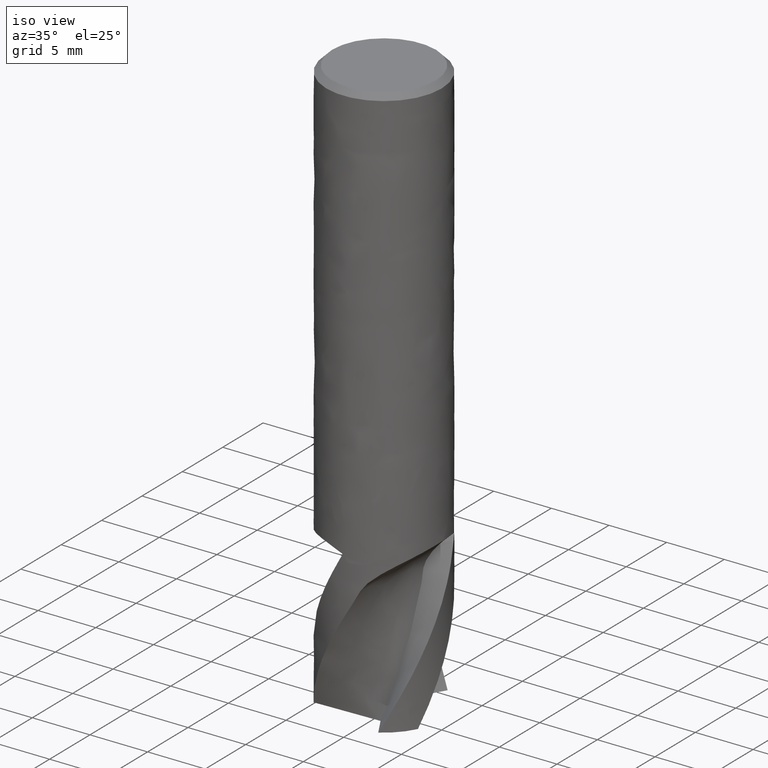
[diagram: clean part render]
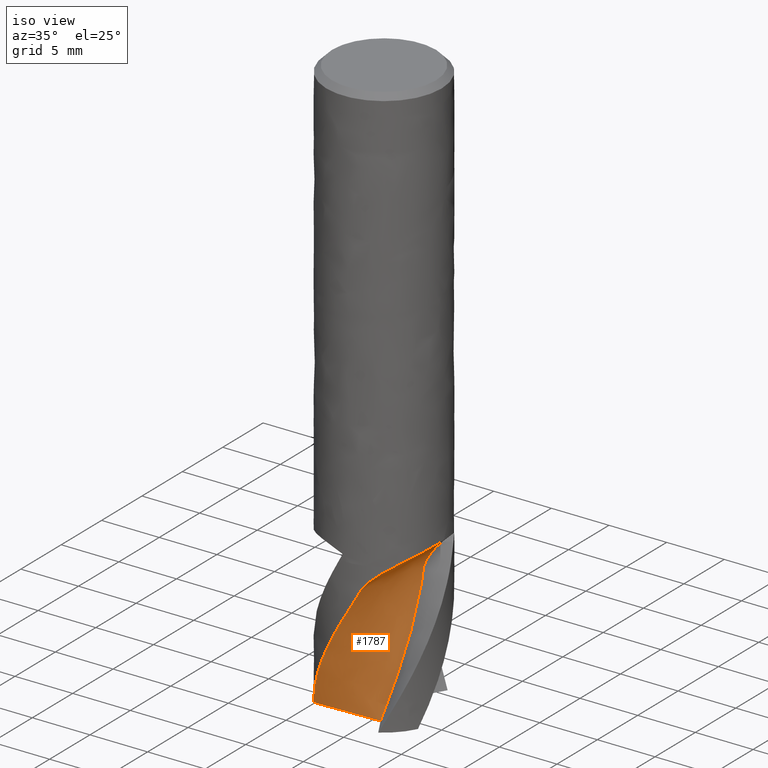
[diagram: same view with one face highlighted and labeled with its STEP entity id]
A machine part, iso view. The second image highlights one B-rep face of the part: STEP entity #1787.
In plain terms, the highlighted face is a freeform B-spline surface patch.
Its self-contained STEP definition (entity closure, byte-faithful):
#979 = VERTEX_POINT('', #980);
#980 = CARTESIAN_POINT('', (3.52731095075702, -3.54373778046141, -37.));
#987 = EDGE_CURVE('', #979, #988, #990, .T.);
#988 = VERTEX_POINT('', #989);
#989 = CARTESIAN_POINT('', (3.82045431044937, 1.82084653301444, -37.));
#990 = LINE('', #991, #992);
#991 = CARTESIAN_POINT('', (3.52731095075703, -3.54373778046141, -37.));
#992 = VECTOR('', #993, 5.37258763406636);
#993 = DIRECTION('', (0.293143359692332, 5.36458431347584, 0.));
#1727 = EDGE_CURVE('', #1728, #988, #1730, .T.);
#1728 = VERTEX_POINT('', #1729);
#1729 = CARTESIAN_POINT('', (1.52973524202982, -2.6149426677213, -50.));
#1730 = B_SPLINE_CURVE_WITH_KNOTS('', 3, (#1731, #1732, #1733, #1734, #1735, #1736, #1737, #1738, #1739, #1740, #1741, #1742, #1743, #1744, #1745, #1746), .UNSPECIFIED., .F., .U., (4, 1, 1, 1, 1, 1, 1, 1, 1, 1, 1, 1, 1, 4), (0.0499999999999139, 1.87333333333333, 2.81, 3.74666666666667, 4.68333333333333, 5.62, 6.55666666666667, 7.49333333333333, 8.43, 9.36666666666667, 10.3033333333333, 11.24, 12.1766666666667, 13.05), .UNSPECIFIED.);
#1731 = CARTESIAN_POINT('', (1.5297352420298, -2.61494266772132, -50.0000000000001));
#1732 = CARTESIAN_POINT('', (1.70853202545369, -2.50367414278105, -49.3922222222223));
#1733 = CARTESIAN_POINT('', (1.9615705231082, -2.30883669785004, -48.4722222222223));
#1734 = CARTESIAN_POINT('', (2.25597846322701, -2.00229892265506, -47.24));
#1735 = CARTESIAN_POINT('', (2.45472630653001, -1.74812208492103, -46.3033333333333));
#1736 = CARTESIAN_POINT('', (2.62656965451419, -1.4752809407662, -45.3666666666667));
#1737 = CARTESIAN_POINT('', (2.76980779281399, -1.18645296262457, -44.43));
#1738 = CARTESIAN_POINT('', (2.88325106920112, -0.884362522824121, -43.4933333333333));
#1739 = CARTESIAN_POINT('', (2.96493973519287, -0.572168038188853, -42.5566666666667));
#1740 = CARTESIAN_POINT('', (3.01697392627312, -0.251934615331243, -41.62));
#1741 = CARTESIAN_POINT('', (3.02752671368613, 0.0697566565968309, -40.6833333333333));
#1742 = CARTESIAN_POINT('', (3.03800817788962, 0.40283498959021, -39.7466666666667));
#1743 = CARTESIAN_POINT('', (2.86114787654536, 0.691249828554066, -38.81));
#1744 = CARTESIAN_POINT('', (3.14595035866943, 1.09796002240504, -37.8944444444444));
#1745 = CARTESIAN_POINT('', (3.57161511705545, 1.54599300256216, -37.2911111111111));
#1746 = CARTESIAN_POINT('', (3.82045431044937, 1.82084653301444, -37.));
#1787 = ADVANCED_FACE('', (#1788), #1948, .T.);
#1788 = FACE_OUTER_BOUND('', #1789, .T.);
#1789 = EDGE_LOOP('', (#1790, #1791, #1941, #1947));
#1790 = ORIENTED_EDGE('', *, *, #987, .F.);
#1791 = ORIENTED_EDGE('', *, *, #1792, .T.);
#1792 = EDGE_CURVE('', #979, #1793, #1795, .T.);
#1793 = VERTEX_POINT('', #1794);
#1794 = CARTESIAN_POINT('', (-4.15237570700581, -2.78527843991727, -50.));
#1795 = B_SPLINE_CURVE_WITH_KNOTS('', 3, (#1796, #1797, #1798, #1799, #1800, #1801, #1802, #1803, #1804, #1805, #1806, #1807, #1808, #1809, #1810, #1811, #1812, #1813, #1814, #1815, #1816, #1817, #1818, #1819, #1820, #1821, #1822, #1823, #1824, #1825, #1826, #1827, #1828, #1829, #1830, #1831, #1832, #1833, #1834, #1835, #1836, #1837, #1838, #1839, #1840, #1841, #1842, #1843, #1844, #1845, #1846, #1847, #1848, #1849, #1850, #1851, #1852, #1853, #1854, #1855, #1856, #1857, #1858, #1859, #1860, #1861, #1862, #1863, #1864, #1865, #1866, #1867, #1868, #1869, #1870, #1871, #1872, #1873, #1874, #1875, #1876, #1877, #1878, #1879, #1880, #1881, #1882, #1883, #1884, #1885, #1886, #1887, #1888, #1889, #1890, #1891, #1892, #1893, #1894, #1895, #1896, #1897, #1898, #1899, #1900, #1901, #1902, #1903, #1904, #1905, #1906, #1907, #1908, #1909, #1910, #1911, #1912, #1913, #1914, #1915, #1916, #1917, #1918, #1919, #1920, #1921, #1922, #1923, #1924, #1925, #1926, #1927, #1928, #1929, #1930, #1931, #1932, #1933, #1934, #1935, #1936, #1937, #1938, #1939, #1940), .UNSPECIFIED., .F., .U., (4, 3, 3, 3, 3, 3, 3, 3, 3, 3, 3, 3, 3, 3, 3, 3, 3, 3, 3, 3, 3, 3, 3, 3, 3, 3, 3, 3, 3, 3, 3, 3, 3, 3, 3, 3, 3, 3, 3, 3, 3, 3, 3, 3, 3, 3, 3, 3, 4), (4.37847124815959, 4.42866788668725, 4.72124892465017, 5.01384954588585, 5.20959122788634, 5.40536847900403, 5.6011939954346, 5.79708109230978, 5.9930435759343, 6.18909628697612, 6.3852693883366, 6.58158512623761, 6.77805996641105, 6.97470642856329, 7.17153040700381, 7.36852788428761, 7.45610649411782, 7.58748366107747, 7.71883004777572, 7.85014773917789, 7.98144380173887, 8.11272916736132, 8.2440174113146, 8.37532380192732, 8.50666464982476, 8.70373445138236, 8.9008071692154, 9.09786418927945, 9.29488926272311, 9.49186798563667, 9.62318009052078, 10.0658573274275, 10.3611574240539, 10.4195336477975, 10.4779199970019, 10.6750745653493, 11.1189992620795, 11.5628587917202, 11.8586185053872, 12.524496604815, 12.968213739976, 13.9673348283944, 14.966081715056, 15.9645169734046, 16.9626347725335, 17.9604507633167, 18.957971355733, 19.955202992374, 20.3201725664195), .UNSPECIFIED.);
#1796 = CARTESIAN_POINT('', (3.52731095075702, -3.54373778046141, -37.));
#1797 = CARTESIAN_POINT('', (3.51658757760726, -3.55441144591961, -37.0071448639305));
#1798 = CARTESIAN_POINT('', (3.50582636083623, -3.56502585765789, -37.0143285236948));
#1799 = CARTESIAN_POINT('', (3.49503218982964, -3.57557687542229, -37.0215485543751));
#1800 = CARTESIAN_POINT('', (3.43211622872762, -3.63707556974966, -37.0636319315199));
#1801 = CARTESIAN_POINT('', (3.36798866215555, -3.69650745938617, -37.1070107370575));
#1802 = CARTESIAN_POINT('', (3.30290631479984, -3.75377275226609, -37.1516928642598));
#1803 = CARTESIAN_POINT('', (3.23781961129935, -3.81104187807332, -37.1963779821627));
#1804 = CARTESIAN_POINT('', (3.17172782630745, -3.86618808751028, -37.2424007260018));
#1805 = CARTESIAN_POINT('', (3.10490592491564, -3.91912735151892, -37.2897827830053));
#1806 = CARTESIAN_POINT('', (3.06020393037556, -3.9545422475542, -37.3214800620314));
#1807 = CARTESIAN_POINT('', (3.01515661945924, -3.98898507676807, -37.3537993025253));
#1808 = CARTESIAN_POINT('', (2.96985191555038, -4.02243453640981, -37.3867510570782));
#1809 = CARTESIAN_POINT('', (2.92453897911635, -4.055890074306, -37.4197087994453));
#1810 = CARTESIAN_POINT('', (2.87895301454366, -4.08836330822844, -37.4533105072234));
#1811 = CARTESIAN_POINT('', (2.83318758932333, -4.11983592922159, -37.4875705128912));
#1812 = CARTESIAN_POINT('', (2.78741088147156, -4.15131630921581, -37.5218389647389));
#1813 = CARTESIAN_POINT('', (2.74143875068203, -4.18180643706447, -37.5567778141449));
#1814 = CARTESIAN_POINT('', (2.69537176452971, -4.2112909007782, -37.5924057145142));
#1815 = CARTESIAN_POINT('', (2.64929029188174, -4.24078463634995, -37.6280448186427));
#1816 = CARTESIAN_POINT('', (2.60309758212529, -4.26928244219477, -37.6643858886091));
#1817 = CARTESIAN_POINT('', (2.55690304362676, -4.29677167481519, -37.7014525178774));
#1818 = CARTESIAN_POINT('', (2.51069072725439, -4.32427148661067, -37.7385334121623));
#1819 = CARTESIAN_POINT('', (2.46445963575687, -4.35077193042953, -37.7763538340911));
#1820 = CARTESIAN_POINT('', (2.41833052854816, -4.37626295538729, -37.8149429992672));
#1821 = CARTESIAN_POINT('', (2.37218018201787, -4.40176571723113, -37.8535499321335));
#1822 = CARTESIAN_POINT('', (2.32611513232719, -4.42626732849094, -37.8929424294686));
#1823 = CARTESIAN_POINT('', (2.2802668413685, -4.44976214332354, -37.9331502459228));
#1824 = CARTESIAN_POINT('', (2.2343903962959, -4.4732713856447, -37.9733827528382));
#1825 = CARTESIAN_POINT('', (2.18871147980169, -4.49578252829075, -38.0144466174042));
#1826 = CARTESIAN_POINT('', (2.1433718431177, -4.5172953348359, -38.0563692103539));
#1827 = CARTESIAN_POINT('', (2.09799924019686, -4.53882378324164, -38.098322285024));
#1828 = CARTESIAN_POINT('', (2.05294648027746, -4.55936178039322, -38.1411535901148));
#1829 = CARTESIAN_POINT('', (2.00837227322583, -4.57891262333512, -38.1848927289589));
#1830 = CARTESIAN_POINT('', (1.96376194142073, -4.5984793110767, -38.2286673157832));
#1831 = CARTESIAN_POINT('', (1.91960938969489, -4.61706655283285, -38.2733721126347));
#1832 = CARTESIAN_POINT('', (1.87609506878996, -4.63468092675882, -38.3190381736861));
#1833 = CARTESIAN_POINT('', (1.83254273785863, -4.65231068694853, -38.3647441243222));
#1834 = CARTESIAN_POINT('', (1.78960603211823, -4.66897531173409, -38.4114375810825));
#1835 = CARTESIAN_POINT('', (1.74749375163451, -4.68468415029213, -38.4591495934175));
#1836 = CARTESIAN_POINT('', (1.7053434556399, -4.70040716950049, -38.5069046762419));
#1837 = CARTESIAN_POINT('', (1.66399244334657, -4.71518241215699, -38.5557098770983));
#1838 = CARTESIAN_POINT('', (1.62368707217189, -4.72902107117973, -38.6055935146154));
#1839 = CARTESIAN_POINT('', (1.5833461721184, -4.74287192887537, -38.6555211241804));
#1840 = CARTESIAN_POINT('', (1.54402225828269, -4.75579480167819, -38.7065662535932));
#1841 = CARTESIAN_POINT('', (1.50601203012692, -4.76780114571832, -38.7587493057389));
#1842 = CARTESIAN_POINT('', (1.4891139307852, -4.77313877204063, -38.7819481772506));
#1843 = CARTESIAN_POINT('', (1.47247261032783, -4.77829643345368, -38.8053790349328));
#1844 = CARTESIAN_POINT('', (1.45611424985407, -4.7832762089777, -38.8290397520368));
#1845 = CARTESIAN_POINT('', (1.43157498096965, -4.79074639835053, -38.8645333273217));
#1846 = CARTESIAN_POINT('', (1.40765974411968, -4.79782043432647, -38.9005523130833));
#1847 = CARTESIAN_POINT('', (1.38438131800678, -4.80452790254748, -38.9370337889432));
#1848 = CARTESIAN_POINT('', (1.36110834577949, -4.81123379928062, -38.9735067175846));
#1849 = CARTESIAN_POINT('', (1.33846342945667, -4.8175759043558, -39.0104559224876));
#1850 = CARTESIAN_POINT('', (1.31642334037947, -4.82359094336428, -39.0478046653066));
#1851 = CARTESIAN_POINT('', (1.29438806640908, -4.82960466826485, -39.0851452485313));
#1852 = CARTESIAN_POINT('', (1.27295055624233, -4.83529349623474, -39.122897083473));
#1853 = CARTESIAN_POINT('', (1.2520442563023, -4.84070089762433, -39.1609723244403));
#1854 = CARTESIAN_POINT('', (1.23114139976001, -4.84610740838127, -39.1990412941784));
#1855 = CARTESIAN_POINT('', (1.2107646011806, -4.85123402897659, -39.2374424310863));
#1856 = CARTESIAN_POINT('', (1.19080069022979, -4.85612949952412, -39.2760802733498));
#1857 = CARTESIAN_POINT('', (1.17083840577656, -4.86102457122841, -39.3147149677153));
#1858 = CARTESIAN_POINT('', (1.15128569004964, -4.86568945826427, -39.3535917815038));
#1859 = CARTESIAN_POINT('', (1.13198493473559, -4.87017557255708, -39.3926103637326));
#1860 = CARTESIAN_POINT('', (1.1126837562673, -4.87466178520449, -39.4316298014139));
#1861 = CARTESIAN_POINT('', (1.09363261306281, -4.87896976770175, -39.4707934632651));
#1862 = CARTESIAN_POINT('', (1.07463756113388, -4.88315001942396, -39.509996672431));
#1863 = CARTESIAN_POINT('', (1.05563988370912, -4.88733084894051, -39.5492053002639));
#1864 = CARTESIAN_POINT('', (1.0366969540179, -4.89138428183844, -39.5884542626605));
#1865 = CARTESIAN_POINT('', (1.01759209050205, -4.89535558844786, -39.6276325792831));
#1866 = CARTESIAN_POINT('', (0.99848221350803, -4.89932793720337, -39.6668211770383));
#1867 = CARTESIAN_POINT('', (0.979208508283451, -4.90321852932095, -39.7059402790398));
#1868 = CARTESIAN_POINT('', (0.959549637408999, -4.90706271544885, -39.7448692422463));
#1869 = CARTESIAN_POINT('', (0.93005257047138, -4.91283070773383, -39.8032800350558));
#1870 = CARTESIAN_POINT('', (0.899676556666448, -4.91849338366037, -39.8612627076616));
#1871 = CARTESIAN_POINT('', (0.868611447225429, -4.92397341115375, -39.9188829791261));
#1872 = CARTESIAN_POINT('', (0.837545878077164, -4.92945351974159, -39.976504103266));
#1873 = CARTESIAN_POINT('', (0.805786579606566, -4.93475173394876, -40.0337717789792));
#1874 = CARTESIAN_POINT('', (0.773519596054754, -4.9398043923337, -40.0907683362393));
#1875 = CARTESIAN_POINT('', (0.741255182719964, -4.94485664825064, -40.1477603534554));
#1876 = CARTESIAN_POINT('', (0.708479937844491, -4.9496638504781, -40.2044867175278));
#1877 = CARTESIAN_POINT('', (0.675378697308106, -4.95417638111749, -40.2610424654783));
#1878 = CARTESIAN_POINT('', (0.642282823100538, -4.95868818019146, -40.3175890446866));
#1879 = CARTESIAN_POINT('', (0.608858903216956, -4.96290564351069, -40.3739681341177));
#1880 = CARTESIAN_POINT('', (0.575295867855748, -4.96679319726804, -40.4302852578345));
#1881 = CARTESIAN_POINT('', (0.541740728263612, -4.97067983647084, -40.4865891328389));
#1882 = CARTESIAN_POINT('', (0.508044905023024, -4.97423682946729, -40.5428329142561));
#1883 = CARTESIAN_POINT('', (0.474408863546249, -4.9774427400211, -40.5991313915813));
#1884 = CARTESIAN_POINT('', (0.451986038679915, -4.97957989908408, -40.6366616966316));
#1885 = CARTESIAN_POINT('', (0.42959312018046, -4.98156108271248, -40.6742192006407));
#1886 = CARTESIAN_POINT('', (0.407282920343078, -4.98338445464494, -40.711833089286));
#1887 = CARTESIAN_POINT('', (0.332071136725988, -4.98953137651191, -40.8386364202472));
#1888 = CARTESIAN_POINT('', (0.257690812354492, -4.99390260131498, -40.9660307745416));
#1889 = CARTESIAN_POINT('', (0.183796577699636, -4.99662073986269, -41.093725471353));
#1890 = CARTESIAN_POINT('', (0.134503384342349, -4.99843394937261, -41.1789077512701));
#1891 = CARTESIAN_POINT('', (0.0854189783202942, -4.99951056114846, -41.2642295577258));
#1892 = CARTESIAN_POINT('', (0.0364074947242855, -4.99986744767578, -41.3495927497917));
#1893 = CARTESIAN_POINT('', (0.0267186887770713, -4.99993799857639, -41.3664677215795));
#1894 = CARTESIAN_POINT('', (0.0170325986243257, -4.99998036803393, -41.3833443940034));
#1895 = CARTESIAN_POINT('', (0.00734807808599483, -4.99999460057193, -41.4002219670022));
#1896 = CARTESIAN_POINT('', (-0.00233812224982093, -5.00000883557858, -41.4171024674463));
#1897 = CARTESIAN_POINT('', (-0.0120227729534397, -4.99999492398435, -41.4339839042468));
#1898 = CARTESIAN_POINT('', (-0.0217070473753938, -4.99995288018739, -41.4508654632999));
#1899 = CARTESIAN_POINT('', (-0.054408166205937, -4.99981090990233, -41.5078698236256));
#1900 = CARTESIAN_POINT('', (-0.0871053145663233, -4.99934847754286, -41.5648765906766));
#1901 = CARTESIAN_POINT('', (-0.119845496988953, -4.99856349933173, -41.6218532937105));
#1902 = CARTESIAN_POINT('', (-0.193565196586551, -4.99679599672076, -41.75014535322));
#1903 = CARTESIAN_POINT('', (-0.267508766355292, -4.99338882639045, -41.8782967940414));
#1904 = CARTESIAN_POINT('', (-0.34144992730949, -4.98832757015218, -42.0063735644156));
#1905 = CARTESIAN_POINT('', (-0.415380233877141, -4.98326705689428, -42.1344315334246));
#1906 = CARTESIAN_POINT('', (-0.489317064017866, -4.97655204400835, -42.2624309526826));
#1907 = CARTESIAN_POINT('', (-0.563016997979124, -4.96820006239549, -42.3904493364701));
#1908 = CARTESIAN_POINT('', (-0.612125938781423, -4.96263483392699, -42.4757526317801));
#1909 = CARTESIAN_POINT('', (-0.6611276673136, -4.9563438490624, -42.5610734506627));
#1910 = CARTESIAN_POINT('', (-0.709964799099017, -4.94933833800441, -42.6464266544642));
#1911 = CARTESIAN_POINT('', (-0.819917490395532, -4.93356601955382, -42.8385922081249));
#1912 = CARTESIAN_POINT('', (-0.929102169025311, -4.91416573903086, -43.030934594018));
#1913 = CARTESIAN_POINT('', (-1.03739883273608, -4.89119654704641, -43.2233149703954));
#1914 = CARTESIAN_POINT('', (-1.10956382120849, -4.87589070642324, -43.3515103105645));
#1915 = CARTESIAN_POINT('', (-1.18135025001986, -4.85899637176505, -43.4797394559019));
#1916 = CARTESIAN_POINT('', (-1.25271580199078, -4.84052715305292, -43.607965605776));
#1917 = CARTESIAN_POINT('', (-1.41341013247884, -4.79893987945075, -43.8966933565749));
#1918 = CARTESIAN_POINT('', (-1.57199164588054, -4.74934592095766, -44.1855610636551));
#1919 = CARTESIAN_POINT('', (-1.72745398816804, -4.69211068909956, -44.4744753617137));
#1920 = CARTESIAN_POINT('', (-1.88285810499889, -4.63489689360645, -44.7632814524297));
#1921 = CARTESIAN_POINT('', (-2.03524693639014, -4.57001697351582, -45.052307231556));
#1922 = CARTESIAN_POINT('', (-2.18384076074393, -4.4978705552423, -45.3413532238333));
#1923 = CARTESIAN_POINT('', (-2.33238822095542, -4.42574664804431, -45.6303090281799));
#1924 = CARTESIAN_POINT('', (-2.47723444551478, -4.34631458397143, -45.9194580617125));
#1925 = CARTESIAN_POINT('', (-2.61759951908854, -4.26006722454801, -46.2086339630313));
#1926 = CARTESIAN_POINT('', (-2.7579199626411, -4.17384728805382, -46.4977179189232));
#1927 = CARTESIAN_POINT('', (-2.89384699466695, -4.08076490125469, -46.7870009982172));
#1928 = CARTESIAN_POINT('', (-3.02467050471152, -3.98137769345341, -47.076311609891));
#1929 = CARTESIAN_POINT('', (-3.15545445667267, -3.88202053810566, -47.3655347405509));
#1930 = CARTESIAN_POINT('', (-3.28121820085698, -3.77630156444317, -47.6549545184216));
#1931 = CARTESIAN_POINT('', (-3.40131408018959, -3.6648414055596, -47.9444021276137));
#1932 = CARTESIAN_POINT('', (-3.52137440574581, -3.55341424389115, -48.2337640473081));
#1933 = CARTESIAN_POINT('', (-3.63584377758164, -3.43618099655867, -48.5233207039844));
#1934 = CARTESIAN_POINT('', (-3.74413999711292, -3.31382191465071, -48.8129083394409));
#1935 = CARTESIAN_POINT('', (-3.85240484604562, -3.19149827698684, -49.10241208889));
#1936 = CARTESIAN_POINT('', (-3.95456117277232, -3.06398425336938, -49.3921166374415));
#1937 = CARTESIAN_POINT('', (-4.05011625596953, -2.93198879826157, -49.6818461607851));
#1938 = CARTESIAN_POINT('', (-4.08508776783395, -2.88368073897366, -49.7878821677045));
#1939 = CARTESIAN_POINT('', (-4.11918125951652, -2.83476570675085, -49.8939365799397));
#1940 = CARTESIAN_POINT('', (-4.15237570700581, -2.78527843991727, -50.));
#1941 = ORIENTED_EDGE('', *, *, #1942, .T.);
#1942 = EDGE_CURVE('', #1793, #1728, #1943, .T.);
#1943 = LINE('', #1944, #1945);
#1944 = CARTESIAN_POINT('', (-4.15237570700581, -2.78527843991727, -50.));
#1945 = VECTOR('', #1946, 5.68466350037012);
#1946 = DIRECTION('', (5.68211094903563, 0.170335772195964, 0.));
#1947 = ORIENTED_EDGE('', *, *, #1727, .T.);
#1948 = B_SPLINE_SURFACE_WITH_KNOTS('', 3, 1, ((#1949, #1950), (#1951, #1952), (#1953, #1954), (#1955, #1956), (#1957, #1958), (#1959, #1960), (#1961, #1962), (#1963, #1964), (#1965, #1966), (#1967, #1968), (#1969, #1970), (#1971, #1972), (#1973, #1974), (#1975, #1976), (#1977, #1978), (#1979, #1980)), .UNSPECIFIED., .F., .F., .U., (4, 1, 1, 1, 1, 1, 1, 1, 1, 1, 1, 1, 1, 4), (2, 2), (0.0499999999999968, 1.87333333333333, 2.81, 3.74666666666667, 4.68333333333333, 5.62, 6.55666666666667, 7.49333333333333, 8.43, 9.36666666666667, 10.3033333333333, 11.24, 12.1766666666667, 13.050000000001), (0., 0.906874797251614), .UNSPECIFIED.);
#1949 = CARTESIAN_POINT('', (1.52973524202982, -2.6149426677213, -50.));
#1950 = CARTESIAN_POINT('', (-4.20515669839427, -2.78686068479176, -50.));
#1951 = CARTESIAN_POINT('', (1.7085320254537, -2.50367414278104, -49.3922222222222));
#1952 = CARTESIAN_POINT('', (-4.00351073986173, -3.07376699149461, -49.3922222222222));
#1953 = CARTESIAN_POINT('', (1.9615705231082, -2.30883669785003, -48.4722222222222));
#1954 = CARTESIAN_POINT('', (-3.65600900312166, -3.4763254814041, -48.4722222222222));
#1955 = CARTESIAN_POINT('', (2.25597846322701, -2.00229892265506, -47.24));
#1956 = CARTESIAN_POINT('', (-3.11894133566921, -3.9372628474473, -47.24));
#1957 = CARTESIAN_POINT('', (2.45472630653001, -1.74812208492103, -46.3033333333333));
#1958 = CARTESIAN_POINT('', (-2.67783752745795, -4.24403149641532, -46.3033333333333));
#1959 = CARTESIAN_POINT('', (2.62656965451419, -1.4752809407662, -45.3666666666667));
#1960 = CARTESIAN_POINT('', (-2.20820785914257, -4.50433051204514, -45.3666666666667));
#1961 = CARTESIAN_POINT('', (2.76980779281399, -1.18645296262457, -44.43));
#1962 = CARTESIAN_POINT('', (-1.71466228592281, -4.71558162034173, -44.43));
#1963 = CARTESIAN_POINT('', (2.88325106920112, -0.884362522824121, -43.4933333333333));
#1964 = CARTESIAN_POINT('', (-1.20184114617508, -4.87606060872105, -43.4933333333333));
#1965 = CARTESIAN_POINT('', (2.96493973519287, -0.572168038188853, -42.5566666666667));
#1966 = CARTESIAN_POINT('', (-0.675178137671766, -4.98280332012567, -42.5566666666667));
#1967 = CARTESIAN_POINT('', (3.01697392627312, -0.251934615331243, -41.62));
#1968 = CARTESIAN_POINT('', (-0.137911138961065, -5.03949376125302, -41.62));
#1969 = CARTESIAN_POINT('', (3.02752671368613, 0.0697566565968309, -40.6833333333333));
#1970 = CARTESIAN_POINT('', (0.397916721019875, -5.02708130073261, -40.6833333333333));
#1971 = CARTESIAN_POINT('', (3.03800817788962, 0.40283498959021, -39.7466666666667));
#1972 = CARTESIAN_POINT('', (0.952670109953098, -5.01348983560298, -39.7466666666667));
#1973 = CARTESIAN_POINT('', (2.86114787654536, 0.691249828554066, -38.81));
#1974 = CARTESIAN_POINT('', (1.41571956431673, -4.69258253705586, -38.81));
#1975 = CARTESIAN_POINT('', (3.14595035866953, 1.09796002240518, -37.8944444444441));
#1976 = CARTESIAN_POINT('', (2.11843976495409, -5.12822125538769, -37.8944444444441));
#1977 = CARTESIAN_POINT('', (3.5716151170559, 1.54599300256264, -37.2911111111105));
#1978 = CARTESIAN_POINT('', (2.90298121495927, -5.79420993594703, -37.2911111111105));
#1979 = CARTESIAN_POINT('', (3.82045431045019, 1.82084653301535, -36.999999999999));
#1980 = CARTESIAN_POINT('', (3.38312693808506, -6.18233513246996, -36.999999999999));